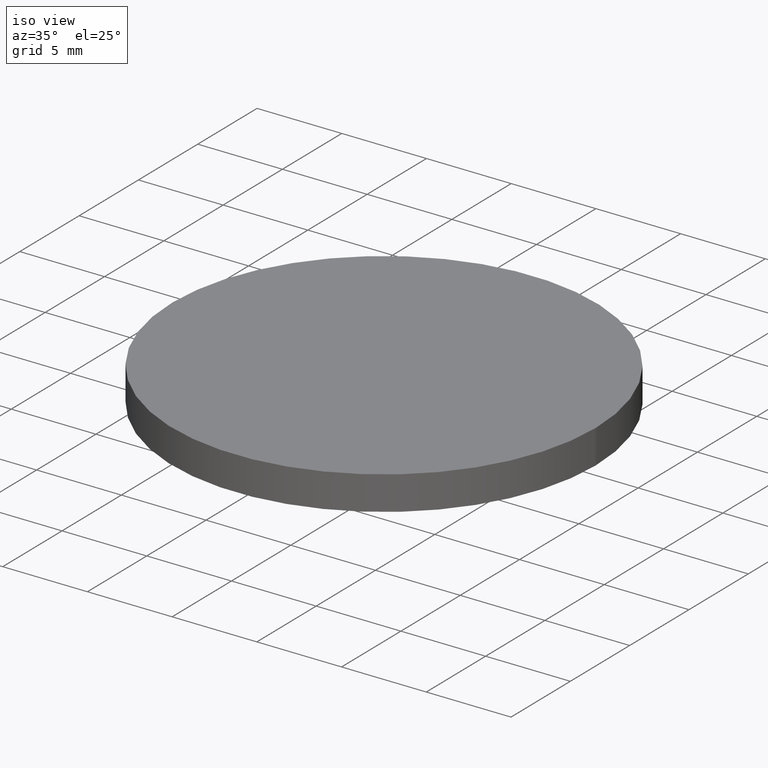
[diagram: clean part render]
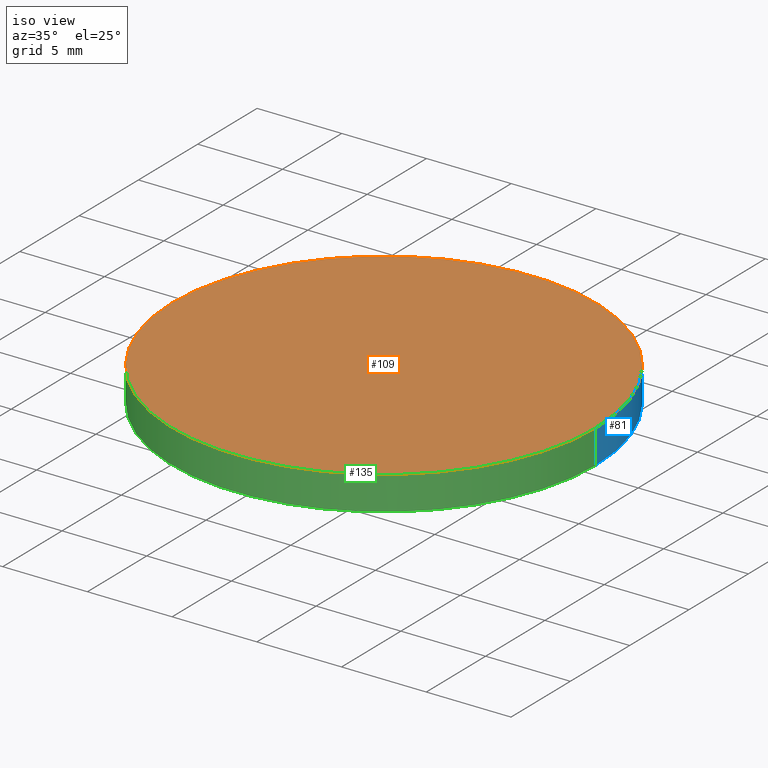
[diagram: same view with three faces highlighted in distinct colors, each labeled with its STEP entity id]
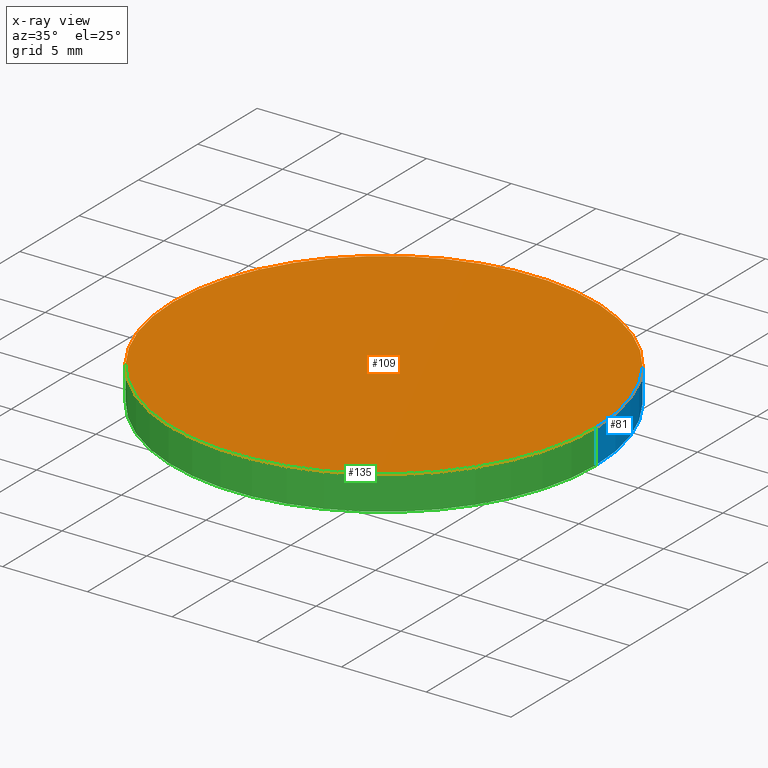
[diagram: x-ray of the same camera — body ghosted, the three highlighted faces saturated]
A machine part, iso view with three faces highlighted in distinct colors.
The next image is the same camera in x-ray (body ghosted, the three faces saturated) — at least one of them is partly hidden behind the body in this view.
Their STEP definitions:

[orange] entity #109 — the highlighted planar face has unit normal (0, 0, 1).
#12 = AXIS2_PLACEMENT_3D ( 'NONE', #86, #147, #79 ) ;
#21 = VERTEX_POINT ( 'NONE', #43 ) ;
#34 = AXIS2_PLACEMENT_3D ( 'NONE', #164, #38, #142 ) ;
#36 = CARTESIAN_POINT ( 'NONE',  ( 0.0000000000000000000, 0.0000000000000000000, 2.000000000000000000 ) ) ;
#37 = FACE_OUTER_BOUND ( 'NONE', #161, .T. ) ;
#38 = DIRECTION ( 'NONE',  ( 0.0000000000000000000, 0.0000000000000000000, 1.000000000000000000 ) ) ;
#40 = EDGE_CURVE ( 'NONE', #171, #21, #95, .T. ) ;
#43 = CARTESIAN_POINT ( 'NONE',  ( -12.50000000000000533, 0.0000000000000000000, 2.000000000000000000 ) ) ;
#46 = AXIS2_PLACEMENT_3D ( 'NONE', #36, #90, #148 ) ;
#58 = EDGE_CURVE ( 'NONE', #21, #171, #110, .T. ) ;
#74 = ORIENTED_EDGE ( 'NONE', *, *, #40, .T. ) ;
#79 = DIRECTION ( 'NONE',  ( 1.000000000000000000, 0.0000000000000000000, 0.0000000000000000000 ) ) ;
#86 = CARTESIAN_POINT ( 'NONE',  ( 0.0000000000000000000, 0.0000000000000000000, 2.000000000000000000 ) ) ;
#90 = DIRECTION ( 'NONE',  ( 0.0000000000000000000, 0.0000000000000000000, 1.000000000000000000 ) ) ;
#91 = PLANE ( 'NONE',  #46 ) ;
#95 = CIRCLE ( 'NONE', #12, 12.50000000000000533 ) ;
#109 = ADVANCED_FACE ( 'NONE', ( #37 ), #91, .T. ) ;
#110 = CIRCLE ( 'NONE', #34, 12.50000000000000533 ) ;
#119 = CARTESIAN_POINT ( 'NONE',  ( 12.50000000000000533, 1.530808498934192113E-15, 2.000000000000000000 ) ) ;
#142 = DIRECTION ( 'NONE',  ( 1.000000000000000000, 0.0000000000000000000, 0.0000000000000000000 ) ) ;
#147 = DIRECTION ( 'NONE',  ( 0.0000000000000000000, 0.0000000000000000000, 1.000000000000000000 ) ) ;
#148 = DIRECTION ( 'NONE',  ( 1.000000000000000000, 0.0000000000000000000, -0.0000000000000000000 ) ) ;
#161 = EDGE_LOOP ( 'NONE', ( #174, #74 ) ) ;
#164 = CARTESIAN_POINT ( 'NONE',  ( 0.0000000000000000000, 0.0000000000000000000, 2.000000000000000000 ) ) ;
#171 = VERTEX_POINT ( 'NONE', #119 ) ;
#174 = ORIENTED_EDGE ( 'NONE', *, *, #58, .T. ) ;

[blue] entity #81 — the highlighted cylindrical surface (partial cylindrical patch) has radius 12.5 mm, axis along (-0, -0, -1).
#4 = EDGE_CURVE ( 'NONE', #171, #72, #131, .T. ) ;
#6 = CARTESIAN_POINT ( 'NONE',  ( 12.50000000000000533, 1.530808498934192113E-15, 2.000000000000000000 ) ) ;
#11 = CARTESIAN_POINT ( 'NONE',  ( 0.0000000000000000000, 0.0000000000000000000, 0.0000000000000000000 ) ) ;
#12 = AXIS2_PLACEMENT_3D ( 'NONE', #86, #147, #79 ) ;
#21 = VERTEX_POINT ( 'NONE', #43 ) ;
#22 = DIRECTION ( 'NONE',  ( 0.0000000000000000000, 0.0000000000000000000, 1.000000000000000000 ) ) ;
#23 = CARTESIAN_POINT ( 'NONE',  ( 0.0000000000000000000, 0.0000000000000000000, 2.000000000000000000 ) ) ;
#27 = EDGE_CURVE ( 'NONE', #21, #117, #100, .T. ) ;
#32 = DIRECTION ( 'NONE',  ( -0.0000000000000000000, -0.0000000000000000000, -1.000000000000000000 ) ) ;
#40 = EDGE_CURVE ( 'NONE', #171, #21, #95, .T. ) ;
#43 = CARTESIAN_POINT ( 'NONE',  ( -12.50000000000000533, 0.0000000000000000000, 2.000000000000000000 ) ) ;
#47 = ORIENTED_EDGE ( 'NONE', *, *, #40, .F. ) ;
#50 = AXIS2_PLACEMENT_3D ( 'NONE', #11, #22, #77 ) ;
#60 = CARTESIAN_POINT ( 'NONE',  ( -12.50000000000000533, 0.0000000000000000000, 0.0000000000000000000 ) ) ;
#71 = CIRCLE ( 'NONE', #50, 12.50000000000000533 ) ;
#72 = VERTEX_POINT ( 'NONE', #149 ) ;
#75 = ORIENTED_EDGE ( 'NONE', *, *, #4, .T. ) ;
#77 = DIRECTION ( 'NONE',  ( 1.000000000000000000, 0.0000000000000000000, 0.0000000000000000000 ) ) ;
#79 = DIRECTION ( 'NONE',  ( 1.000000000000000000, 0.0000000000000000000, 0.0000000000000000000 ) ) ;
#81 = ADVANCED_FACE ( 'NONE', ( #139 ), #122, .T. ) ;
#86 = CARTESIAN_POINT ( 'NONE',  ( 0.0000000000000000000, 0.0000000000000000000, 2.000000000000000000 ) ) ;
#89 = VECTOR ( 'NONE', #32, 1000.000000000000000 ) ;
#95 = CIRCLE ( 'NONE', #12, 12.50000000000000533 ) ;
#100 = LINE ( 'NONE', #158, #89 ) ;
#104 = ORIENTED_EDGE ( 'NONE', *, *, #27, .F. ) ;
#117 = VERTEX_POINT ( 'NONE', #60 ) ;
#119 = CARTESIAN_POINT ( 'NONE',  ( 12.50000000000000533, 1.530808498934192113E-15, 2.000000000000000000 ) ) ;
#120 = DIRECTION ( 'NONE',  ( -0.0000000000000000000, -0.0000000000000000000, -1.000000000000000000 ) ) ;
#122 = CYLINDRICAL_SURFACE ( 'NONE', #167, 12.50000000000000533 ) ;
#131 = LINE ( 'NONE', #6, #140 ) ;
#133 = DIRECTION ( 'NONE',  ( -0.0000000000000000000, -0.0000000000000000000, -1.000000000000000000 ) ) ;
#136 = EDGE_LOOP ( 'NONE', ( #47, #75, #162, #104 ) ) ;
#137 = DIRECTION ( 'NONE',  ( -1.000000000000000000, 0.0000000000000000000, 0.0000000000000000000 ) ) ;
#139 = FACE_OUTER_BOUND ( 'NONE', #136, .T. ) ;
#140 = VECTOR ( 'NONE', #133, 1000.000000000000000 ) ;
#147 = DIRECTION ( 'NONE',  ( 0.0000000000000000000, 0.0000000000000000000, 1.000000000000000000 ) ) ;
#149 = CARTESIAN_POINT ( 'NONE',  ( 12.50000000000000533, 1.530808498934192113E-15, 0.0000000000000000000 ) ) ;
#158 = CARTESIAN_POINT ( 'NONE',  ( -12.50000000000000533, 0.0000000000000000000, 2.000000000000000000 ) ) ;
#162 = ORIENTED_EDGE ( 'NONE', *, *, #175, .T. ) ;
#167 = AXIS2_PLACEMENT_3D ( 'NONE', #23, #120, #137 ) ;
#171 = VERTEX_POINT ( 'NONE', #119 ) ;
#175 = EDGE_CURVE ( 'NONE', #72, #117, #71, .T. ) ;

[green] entity #135 — the highlighted cylindrical surface (partial cylindrical patch) has radius 12.5 mm, axis along (-0, -0, -1).
#1 = CIRCLE ( 'NONE', #153, 12.50000000000000533 ) ;
#2 = DIRECTION ( 'NONE',  ( -0.0000000000000000000, -0.0000000000000000000, -1.000000000000000000 ) ) ;
#3 = CARTESIAN_POINT ( 'NONE',  ( 0.0000000000000000000, 0.0000000000000000000, 0.0000000000000000000 ) ) ;
#4 = EDGE_CURVE ( 'NONE', #171, #72, #131, .T. ) ;
#6 = CARTESIAN_POINT ( 'NONE',  ( 12.50000000000000533, 1.530808498934192113E-15, 2.000000000000000000 ) ) ;
#13 = CARTESIAN_POINT ( 'NONE',  ( 0.0000000000000000000, 0.0000000000000000000, 2.000000000000000000 ) ) ;
#16 = ORIENTED_EDGE ( 'NONE', *, *, #4, .F. ) ;
#21 = VERTEX_POINT ( 'NONE', #43 ) ;
#27 = EDGE_CURVE ( 'NONE', #21, #117, #100, .T. ) ;
#32 = DIRECTION ( 'NONE',  ( -0.0000000000000000000, -0.0000000000000000000, -1.000000000000000000 ) ) ;
#34 = AXIS2_PLACEMENT_3D ( 'NONE', #164, #38, #142 ) ;
#35 = ORIENTED_EDGE ( 'NONE', *, *, #27, .T. ) ;
#38 = DIRECTION ( 'NONE',  ( 0.0000000000000000000, 0.0000000000000000000, 1.000000000000000000 ) ) ;
#43 = CARTESIAN_POINT ( 'NONE',  ( -12.50000000000000533, 0.0000000000000000000, 2.000000000000000000 ) ) ;
#48 = ORIENTED_EDGE ( 'NONE', *, *, #58, .F. ) ;
#57 = EDGE_LOOP ( 'NONE', ( #16, #48, #35, #116 ) ) ;
#58 = EDGE_CURVE ( 'NONE', #21, #171, #110, .T. ) ;
#60 = CARTESIAN_POINT ( 'NONE',  ( -12.50000000000000533, 0.0000000000000000000, 0.0000000000000000000 ) ) ;
#61 = AXIS2_PLACEMENT_3D ( 'NONE', #13, #2, #151 ) ;
#64 = DIRECTION ( 'NONE',  ( 0.0000000000000000000, 0.0000000000000000000, 1.000000000000000000 ) ) ;
#72 = VERTEX_POINT ( 'NONE', #149 ) ;
#78 = CYLINDRICAL_SURFACE ( 'NONE', #61, 12.50000000000000533 ) ;
#89 = VECTOR ( 'NONE', #32, 1000.000000000000000 ) ;
#93 = FACE_OUTER_BOUND ( 'NONE', #57, .T. ) ;
#100 = LINE ( 'NONE', #158, #89 ) ;
#106 = DIRECTION ( 'NONE',  ( 1.000000000000000000, 0.0000000000000000000, 0.0000000000000000000 ) ) ;
#110 = CIRCLE ( 'NONE', #34, 12.50000000000000533 ) ;
#116 = ORIENTED_EDGE ( 'NONE', *, *, #168, .T. ) ;
#117 = VERTEX_POINT ( 'NONE', #60 ) ;
#119 = CARTESIAN_POINT ( 'NONE',  ( 12.50000000000000533, 1.530808498934192113E-15, 2.000000000000000000 ) ) ;
#131 = LINE ( 'NONE', #6, #140 ) ;
#133 = DIRECTION ( 'NONE',  ( -0.0000000000000000000, -0.0000000000000000000, -1.000000000000000000 ) ) ;
#135 = ADVANCED_FACE ( 'NONE', ( #93 ), #78, .T. ) ;
#140 = VECTOR ( 'NONE', #133, 1000.000000000000000 ) ;
#142 = DIRECTION ( 'NONE',  ( 1.000000000000000000, 0.0000000000000000000, 0.0000000000000000000 ) ) ;
#149 = CARTESIAN_POINT ( 'NONE',  ( 12.50000000000000533, 1.530808498934192113E-15, 0.0000000000000000000 ) ) ;
#151 = DIRECTION ( 'NONE',  ( -1.000000000000000000, 0.0000000000000000000, 0.0000000000000000000 ) ) ;
#153 = AXIS2_PLACEMENT_3D ( 'NONE', #3, #64, #106 ) ;
#158 = CARTESIAN_POINT ( 'NONE',  ( -12.50000000000000533, 0.0000000000000000000, 2.000000000000000000 ) ) ;
#164 = CARTESIAN_POINT ( 'NONE',  ( 0.0000000000000000000, 0.0000000000000000000, 2.000000000000000000 ) ) ;
#168 = EDGE_CURVE ( 'NONE', #117, #72, #1, .T. ) ;
#171 = VERTEX_POINT ( 'NONE', #119 ) ;